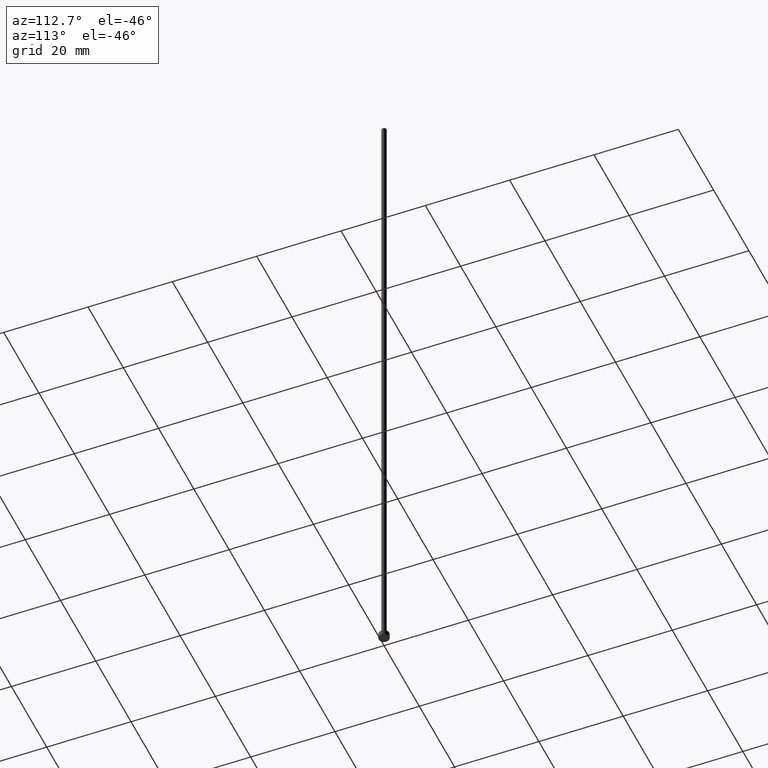
[diagram: clean part render]
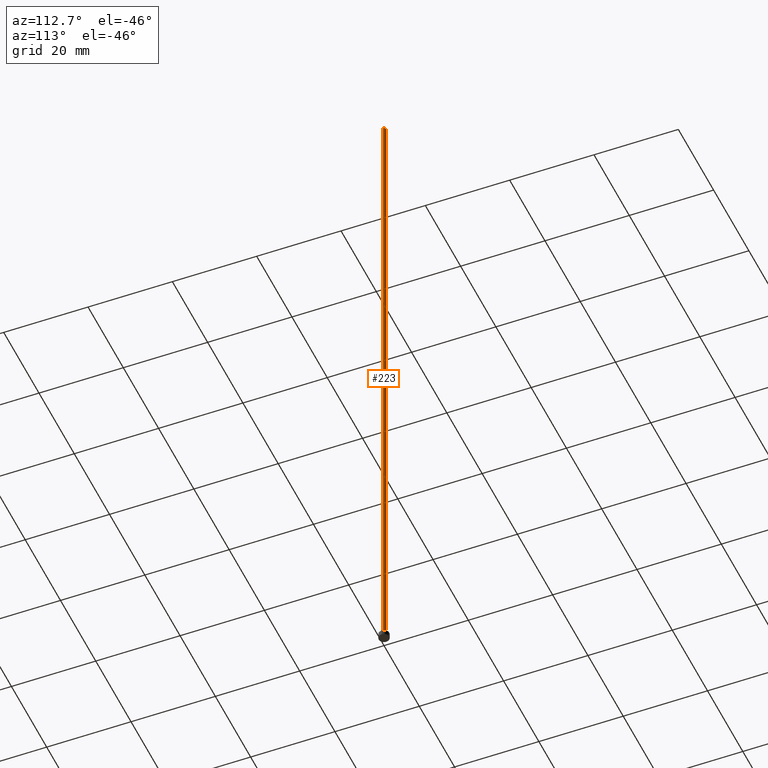
[diagram: same view with one face highlighted and labeled with its STEP entity id]
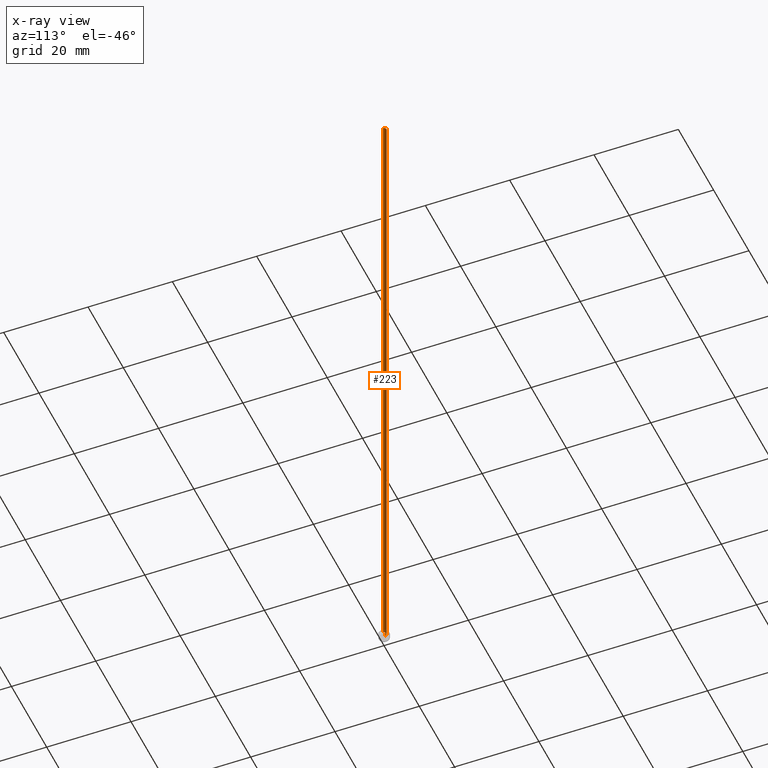
[diagram: x-ray of the same camera — body ghosted, the highlighted face saturated]
A machine part, auxiliary view. The second image highlights one B-rep face of the part: STEP entity #223.
The next image is the same camera in x-ray: the body ghosted, the highlighted face saturated — about 0% of this face is hidden behind the body in this view.
In plain terms, the highlighted cylindrical surface (edge-blend (fillet) strip) has radius 0.6 mm, axis along (-0, -0, -1).
Its self-contained STEP definition (entity closure, byte-faithful):
#13 = EDGE_CURVE ( 'NONE', #188, #146, #212, .T. ) ;
#15 = DIRECTION ( 'NONE',  ( -0.000000000000000000, -0.000000000000000000, -1.000000000000000000 ) ) ;
#31 = AXIS2_PLACEMENT_3D ( 'NONE', #190, #57, #229 ) ;
#33 = DIRECTION ( 'NONE',  ( 0.000000000000000000, 0.000000000000000000, 1.000000000000000000 ) ) ;
#48 = VECTOR ( 'NONE', #15, 1000.000000000000000 ) ;
#50 = DIRECTION ( 'NONE',  ( -1.000000000000000000, 0.000000000000000000, 0.000000000000000000 ) ) ;
#52 = CARTESIAN_POINT ( 'NONE',  ( 0.000000000000000000, 0.000000000000000000, 1.199999999999999956 ) ) ;
#57 = DIRECTION ( 'NONE',  ( 0.000000000000000000, 0.000000000000000000, 1.000000000000000000 ) ) ;
#68 = AXIS2_PLACEMENT_3D ( 'NONE', #235, #90, #50 ) ;
#69 = ORIENTED_EDGE ( 'NONE', *, *, #13, .T. ) ;
#73 = CARTESIAN_POINT ( 'NONE',  ( -0.5999999999999999778, 0.000000000000000000, 160.0000000000000284 ) ) ;
#79 = EDGE_CURVE ( 'NONE', #119, #146, #241, .T. ) ;
#90 = DIRECTION ( 'NONE',  ( -0.000000000000000000, -0.000000000000000000, -1.000000000000000000 ) ) ;
#92 = VECTOR ( 'NONE', #154, 1000.000000000000000 ) ;
#104 = ORIENTED_EDGE ( 'NONE', *, *, #79, .F. ) ;
#105 = FACE_OUTER_BOUND ( 'NONE', #113, .T. ) ;
#113 = EDGE_LOOP ( 'NONE', ( #198, #152, #69, #104 ) ) ;
#119 = VERTEX_POINT ( 'NONE', #135 ) ;
#126 = CYLINDRICAL_SURFACE ( 'NONE', #68, 0.5999999999999999778 ) ;
#132 = DIRECTION ( 'NONE',  ( 1.000000000000000000, 0.000000000000000000, 0.000000000000000000 ) ) ;
#135 = CARTESIAN_POINT ( 'NONE',  ( -0.5999999999999999778, 0.000000000000000000, 160.0000000000000284 ) ) ;
#146 = VERTEX_POINT ( 'NONE', #250 ) ;
#150 = CARTESIAN_POINT ( 'NONE',  ( 0.5999999999999999778, 7.347880794884117764E-17, 160.0000000000000284 ) ) ;
#152 = ORIENTED_EDGE ( 'NONE', *, *, #168, .T. ) ;
#154 = DIRECTION ( 'NONE',  ( -0.000000000000000000, -0.000000000000000000, -1.000000000000000000 ) ) ;
#168 = EDGE_CURVE ( 'NONE', #193, #188, #231, .T. ) ;
#182 = EDGE_CURVE ( 'NONE', #193, #119, #248, .T. ) ;
#188 = VERTEX_POINT ( 'NONE', #209 ) ;
#190 = CARTESIAN_POINT ( 'NONE',  ( 0.000000000000000000, 0.000000000000000000, 160.0000000000000284 ) ) ;
#193 = VERTEX_POINT ( 'NONE', #150 ) ;
#198 = ORIENTED_EDGE ( 'NONE', *, *, #182, .F. ) ;
#209 = CARTESIAN_POINT ( 'NONE',  ( 0.5999999999999999778, 7.347880794884117764E-17, 1.199999999999999956 ) ) ;
#212 = CIRCLE ( 'NONE', #249, 0.5999999999999999778 ) ;
#223 = ADVANCED_FACE ( 'NONE', ( #105 ), #126, .T. ) ;
#228 = CARTESIAN_POINT ( 'NONE',  ( 0.5999999999999999778, 7.347880794884117764E-17, 160.0000000000000284 ) ) ;
#229 = DIRECTION ( 'NONE',  ( 1.000000000000000000, 0.000000000000000000, 0.000000000000000000 ) ) ;
#231 = LINE ( 'NONE', #228, #48 ) ;
#235 = CARTESIAN_POINT ( 'NONE',  ( 0.000000000000000000, 0.000000000000000000, 160.0000000000000284 ) ) ;
#241 = LINE ( 'NONE', #73, #92 ) ;
#248 = CIRCLE ( 'NONE', #31, 0.5999999999999999778 ) ;
#249 = AXIS2_PLACEMENT_3D ( 'NONE', #52, #33, #132 ) ;
#250 = CARTESIAN_POINT ( 'NONE',  ( -0.5999999999999999778, 0.000000000000000000, 1.199999999999999956 ) ) ;